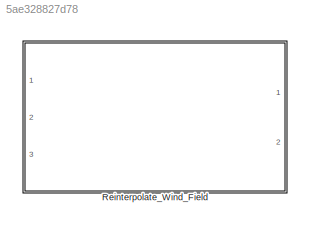
MODEL slx_5ae328827d78
KIND library
CONFIG AbsTol = auto
CONFIG EnableMultiTasking = off
CONFIG FixedStep = auto
CONFIG MaxStep = auto
CONFIG MinStep = auto
CONFIG RelTol = 1e-3
CONFIG SampleTimeConstraint = Unconstrained
CONFIG Solver = VariableStepAuto
CONFIG SolverName = VariableStepAuto
CONFIG StartTime = 0.0
CONFIG StopTime = 10.0
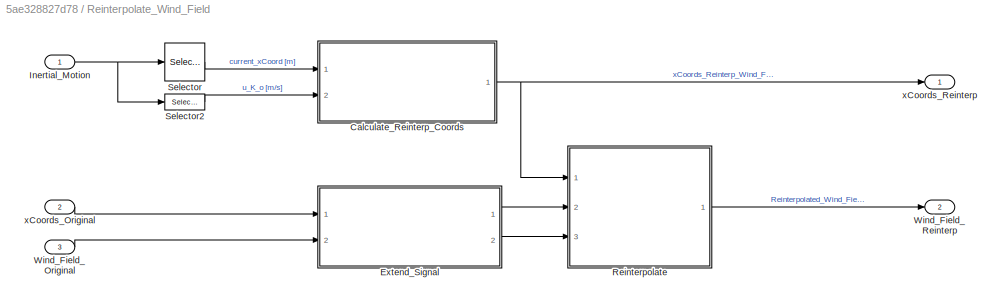
BLOCK [SubSystem] Reinterpolate_Wind_Field
  Ports = [3, 2]
  RequestExecContextInheritance = off
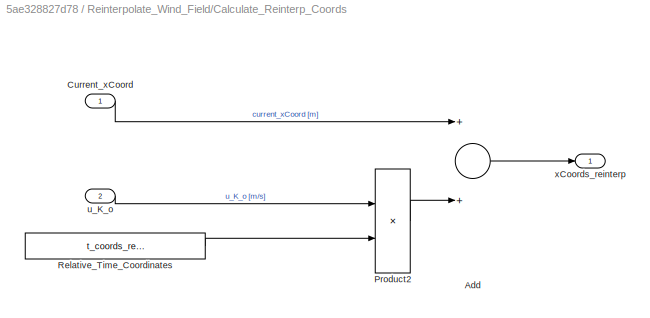
BLOCK [SubSystem] Reinterpolate_Wind_Field/Calculate_Reinterp_Coords
  Ports = [2, 1]
  RequestExecContextInheritance = off
BLOCK [Sum] Reinterpolate_Wind_Field/Calculate_Reinterp_Coords/Add
  InputSameDT = off
  OutDataTypeStr = Inherit: Inherit via internal rule
  Ports = [2, 1]
  SaturateOnIntegerOverflow = off
BLOCK [Inport] Reinterpolate_Wind_Field/Calculate_Reinterp_Coords/Current_xCoord
  IconDisplay = Port number
BLOCK [Product] Reinterpolate_Wind_Field/Calculate_Reinterp_Coords/Product2
  InputSameDT = off
  OutDataTypeStr = Inherit: Inherit via internal rule
  Ports = [2, 1]
  SaturateOnIntegerOverflow = off
BLOCK [Constant] Reinterpolate_Wind_Field/Calculate_Reinterp_Coords/Relative_Time_Coordinates
  Value = t_coords_reinterp
BLOCK [Inport] Reinterpolate_Wind_Field/Calculate_Reinterp_Coords/u_K_o
  IconDisplay = Port number
  Port = 2
BLOCK [Outport] Reinterpolate_Wind_Field/Calculate_Reinterp_Coords/xCoords_reinterp
  IconDisplay = Port number
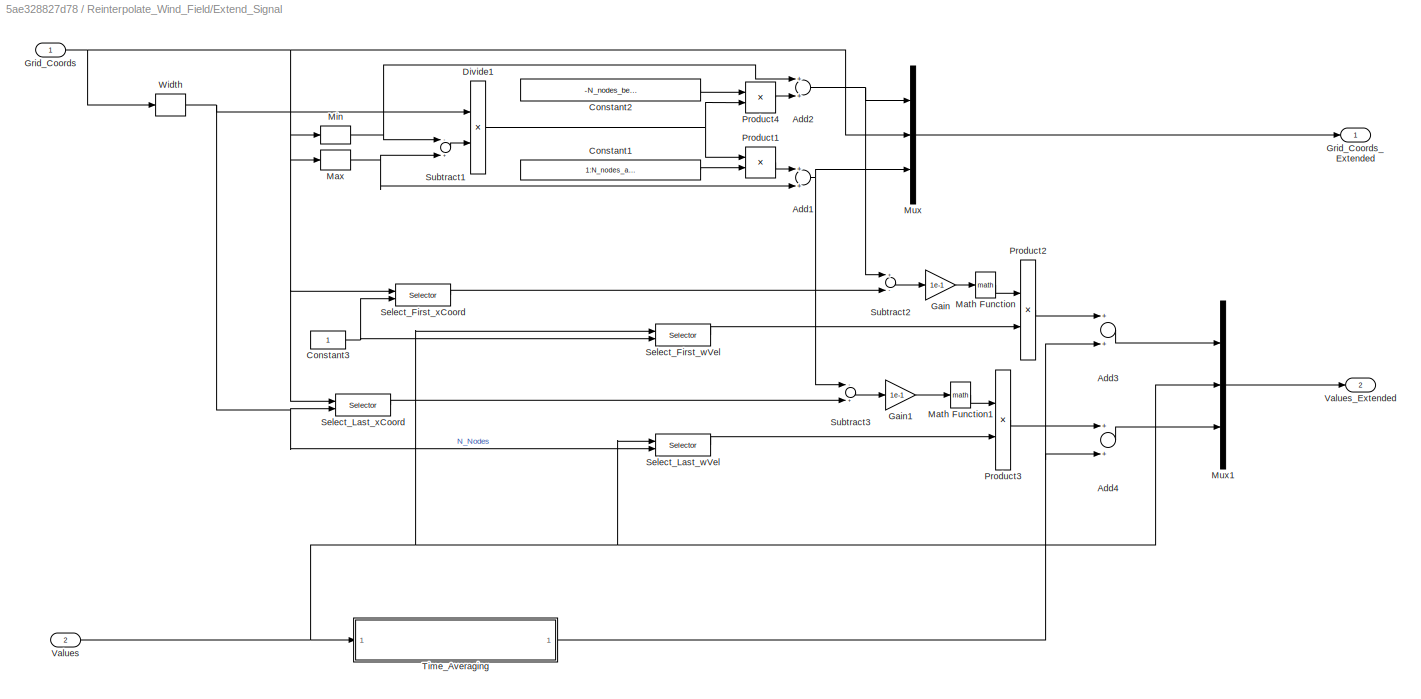
BLOCK [SubSystem] Reinterpolate_Wind_Field/Extend_Signal
  Ports = [2, 2]
  RequestExecContextInheritance = off
BLOCK [Sum] Reinterpolate_Wind_Field/Extend_Signal/Add1
  InputSameDT = off
  OutDataTypeStr = Inherit: Inherit via internal rule
  Ports = [2, 1]
  SaturateOnIntegerOverflow = off
BLOCK [Sum] Reinterpolate_Wind_Field/Extend_Signal/Add2
  InputSameDT = off
  OutDataTypeStr = Inherit: Inherit via internal rule
  Ports = [2, 1]
  SaturateOnIntegerOverflow = off
BLOCK [Sum] Reinterpolate_Wind_Field/Extend_Signal/Add3
  InputSameDT = off
  OutDataTypeStr = Inherit: Inherit via internal rule
  Ports = [2, 1]
  SaturateOnIntegerOverflow = off
BLOCK [Sum] Reinterpolate_Wind_Field/Extend_Signal/Add4
  InputSameDT = off
  OutDataTypeStr = Inherit: Inherit via internal rule
  Ports = [2, 1]
  SaturateOnIntegerOverflow = off
BLOCK [Constant] Reinterpolate_Wind_Field/Extend_Signal/Constant1
  Value = 1:N_nodes_ahead
BLOCK [Constant] Reinterpolate_Wind_Field/Extend_Signal/Constant2
  Value = -N_nodes_behind:-1
BLOCK [Constant] Reinterpolate_Wind_Field/Extend_Signal/Constant3
BLOCK [Product] Reinterpolate_Wind_Field/Extend_Signal/Divide1
  InputSameDT = off
  Inputs = /*
  OutDataTypeStr = Inherit: Inherit via internal rule
  Ports = [2, 1]
  RndMeth = Floor
  SaturateOnIntegerOverflow = off
BLOCK [Gain] Reinterpolate_Wind_Field/Extend_Signal/Gain
  Gain = 1e-1
  OutDataTypeStr = Inherit: Inherit via internal rule
  ParamDataTypeStr = Inherit: Inherit via internal rule
  SaturateOnIntegerOverflow = off
BLOCK [Gain] Reinterpolate_Wind_Field/Extend_Signal/Gain1
  Gain = 1e-1
  OutDataTypeStr = Inherit: Inherit via internal rule
  ParamDataTypeStr = Inherit: Inherit via internal rule
  SaturateOnIntegerOverflow = off
BLOCK [Inport] Reinterpolate_Wind_Field/Extend_Signal/Grid_Coords
  IconDisplay = Port number
BLOCK [Outport] Reinterpolate_Wind_Field/Extend_Signal/Grid_Coords_Extended
  IconDisplay = Port number
BLOCK [Math] Reinterpolate_Wind_Field/Extend_Signal/Math Function
  Ports = [1, 1]
BLOCK [Math] Reinterpolate_Wind_Field/Extend_Signal/Math Function1
  Ports = [1, 1]
BLOCK [MinMax] Reinterpolate_Wind_Field/Extend_Signal/Max
  Function = max
  InputSameDT = off
  Ports = [1, 1]
  SaturateOnIntegerOverflow = off
BLOCK [MinMax] Reinterpolate_Wind_Field/Extend_Signal/Min
  InputSameDT = off
  Ports = [1, 1]
  SaturateOnIntegerOverflow = off
BLOCK [Mux] Reinterpolate_Wind_Field/Extend_Signal/Mux
  DisplayOption = bar
  Inputs = 3
  Ports = [3, 1]
BLOCK [Mux] Reinterpolate_Wind_Field/Extend_Signal/Mux1
  DisplayOption = bar
  Inputs = 3
  Ports = [3, 1]
BLOCK [Product] Reinterpolate_Wind_Field/Extend_Signal/Product1
  InputSameDT = off
  OutDataTypeStr = Inherit: Inherit via internal rule
  Ports = [2, 1]
  SaturateOnIntegerOverflow = off
BLOCK [Product] Reinterpolate_Wind_Field/Extend_Signal/Product2
  InputSameDT = off
  OutDataTypeStr = Inherit: Inherit via internal rule
  Ports = [2, 1]
  SaturateOnIntegerOverflow = off
BLOCK [Product] Reinterpolate_Wind_Field/Extend_Signal/Product3
  InputSameDT = off
  OutDataTypeStr = Inherit: Inherit via internal rule
  Ports = [2, 1]
  SaturateOnIntegerOverflow = off
BLOCK [Product] Reinterpolate_Wind_Field/Extend_Signal/Product4
  InputSameDT = off
  OutDataTypeStr = Inherit: Inherit via internal rule
  Ports = [2, 1]
  SaturateOnIntegerOverflow = off
BLOCK [Selector] Reinterpolate_Wind_Field/Extend_Signal/Select_First_wVel
  IndexOptions = Index vector (port)
  Indices = 1
  OutputSizes = 1
  Ports = [2, 1]
BLOCK [Selector] Reinterpolate_Wind_Field/Extend_Signal/Select_First_xCoord
  IndexOptions = Index vector (port)
  Indices = 1
  OutputSizes = 1
  Ports = [2, 1]
BLOCK [Selector] Reinterpolate_Wind_Field/Extend_Signal/Select_Last_wVel
  IndexOptions = Index vector (port)
  Indices = 1
  OutputSizes = 1
  Ports = [2, 1]
BLOCK [Selector] Reinterpolate_Wind_Field/Extend_Signal/Select_Last_xCoord
  IndexOptions = Index vector (port)
  Indices = 1
  OutputSizes = 1
  Ports = [2, 1]
BLOCK [Sum] Reinterpolate_Wind_Field/Extend_Signal/Subtract1
  InputSameDT = off
  Inputs = -+
  OutDataTypeStr = Inherit: Inherit via internal rule
  Ports = [2, 1]
  SaturateOnIntegerOverflow = off
BLOCK [Sum] Reinterpolate_Wind_Field/Extend_Signal/Subtract2
  InputSameDT = off
  Inputs = +-
  OutDataTypeStr = Inherit: Inherit via internal rule
  Ports = [2, 1]
  SaturateOnIntegerOverflow = off
BLOCK [Sum] Reinterpolate_Wind_Field/Extend_Signal/Subtract3
  InputSameDT = off
  Inputs = -+
  OutDataTypeStr = Inherit: Inherit via internal rule
  Ports = [2, 1]
  SaturateOnIntegerOverflow = off
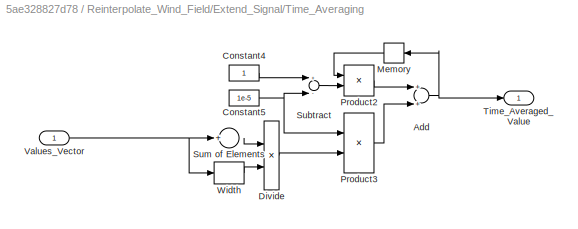
BLOCK [SubSystem] Reinterpolate_Wind_Field/Extend_Signal/Time_Averaging
  Ports = [1, 1]
  RequestExecContextInheritance = off
BLOCK [Sum] Reinterpolate_Wind_Field/Extend_Signal/Time_Averaging/Add
  InputSameDT = off
  OutDataTypeStr = Inherit: Inherit via internal rule
  Ports = [2, 1]
  SaturateOnIntegerOverflow = off
BLOCK [Constant] Reinterpolate_Wind_Field/Extend_Signal/Time_Averaging/Constant4
BLOCK [Constant] Reinterpolate_Wind_Field/Extend_Signal/Time_Averaging/Constant5
  Value = 1e-5
BLOCK [Product] Reinterpolate_Wind_Field/Extend_Signal/Time_Averaging/Divide
  InputSameDT = off
  Inputs = */
  OutDataTypeStr = Inherit: Inherit via internal rule
  Ports = [2, 1]
  RndMeth = Floor
  SaturateOnIntegerOverflow = off
BLOCK [Memory] Reinterpolate_Wind_Field/Extend_Signal/Time_Averaging/Memory
BLOCK [Product] Reinterpolate_Wind_Field/Extend_Signal/Time_Averaging/Product2
  InputSameDT = off
  OutDataTypeStr = Inherit: Inherit via internal rule
  Ports = [2, 1]
  SaturateOnIntegerOverflow = off
BLOCK [Product] Reinterpolate_Wind_Field/Extend_Signal/Time_Averaging/Product3
  InputSameDT = off
  OutDataTypeStr = Inherit: Inherit via internal rule
  Ports = [2, 1]
  SaturateOnIntegerOverflow = off
BLOCK [Sum] Reinterpolate_Wind_Field/Extend_Signal/Time_Averaging/Subtract
  InputSameDT = off
  Inputs = +-
  OutDataTypeStr = Inherit: Inherit via internal rule
  Ports = [2, 1]
  SaturateOnIntegerOverflow = off
BLOCK [Sum] Reinterpolate_Wind_Field/Extend_Signal/Time_Averaging/Sum of Elements
  InputSameDT = off
  Inputs = +
  OutDataTypeStr = Inherit: Inherit via internal rule
  Ports = [1, 1]
  SaturateOnIntegerOverflow = off
BLOCK [Outport] Reinterpolate_Wind_Field/Extend_Signal/Time_Averaging/Time_Averaged_Value
  IconDisplay = Port number
BLOCK [Inport] Reinterpolate_Wind_Field/Extend_Signal/Time_Averaging/Values_Vector
  IconDisplay = Port number
BLOCK [Width] Reinterpolate_Wind_Field/Extend_Signal/Time_Averaging/Width
BLOCK [Inport] Reinterpolate_Wind_Field/Extend_Signal/Values
  IconDisplay = Port number
  Port = 2
BLOCK [Outport] Reinterpolate_Wind_Field/Extend_Signal/Values_Extended
  IconDisplay = Port number
  Port = 2
BLOCK [Width] Reinterpolate_Wind_Field/Extend_Signal/Width
BLOCK [Inport] Reinterpolate_Wind_Field/Inertial_Motion
  IconDisplay = Port number
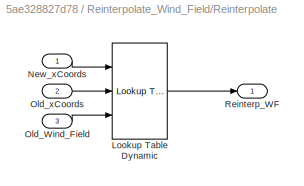
BLOCK [SubSystem] Reinterpolate_Wind_Field/Reinterpolate
  Ports = [3, 1]
  RequestExecContextInheritance = off
BLOCK [Reference] Reinterpolate_Wind_Field/Reinterpolate/Lookup Table Dynamic  REF=simulink/Lookup
Tables/Lookup
Table
Dynamic
  Ports = [3, 1]
  SourceBlock = simulink/Lookup\nTables/Lookup\nTable\nDynamic
  SourceType = Lookup Table Dynamic
BLOCK [Inport] Reinterpolate_Wind_Field/Reinterpolate/New_xCoords
  IconDisplay = Port number
BLOCK [Inport] Reinterpolate_Wind_Field/Reinterpolate/Old_Wind_Field
  IconDisplay = Port number
  Port = 3
BLOCK [Inport] Reinterpolate_Wind_Field/Reinterpolate/Old_xCoords
  IconDisplay = Port number
  Port = 2
BLOCK [Outport] Reinterpolate_Wind_Field/Reinterpolate/Reinterp_WF
  IconDisplay = Port number
BLOCK [Selector] Reinterpolate_Wind_Field/Selector
  IndexOptions = Index vector (dialog)
  Indices = 1
  OutputSizes = 1
  Ports = [1, 1]
BLOCK [Selector] Reinterpolate_Wind_Field/Selector2
  IndexOptions = Index vector (dialog)
  Indices = 7
  OutputSizes = 1
  Ports = [1, 1]
BLOCK [Inport] Reinterpolate_Wind_Field/Wind_Field_Original
  IconDisplay = Port number
  Port = 3
BLOCK [Outport] Reinterpolate_Wind_Field/Wind_Field_Reinterp
  IconDisplay = Port number
  Port = 2
BLOCK [Inport] Reinterpolate_Wind_Field/xCoords_Original
  IconDisplay = Port number
  Port = 2
BLOCK [Outport] Reinterpolate_Wind_Field/xCoords_Reinterp
  IconDisplay = Port number
LINE Reinterpolate_Wind_Field/Calculate_Reinterp_Coords/Add:1 -> Reinterpolate_Wind_Field/Calculate_Reinterp_Coords/xCoords_reinterp:1
LINE Reinterpolate_Wind_Field/Calculate_Reinterp_Coords/Current_xCoord:1 -> Reinterpolate_Wind_Field/Calculate_Reinterp_Coords/Add:1
LINE Reinterpolate_Wind_Field/Calculate_Reinterp_Coords/Product2:1 -> Reinterpolate_Wind_Field/Calculate_Reinterp_Coords/Add:2
LINE Reinterpolate_Wind_Field/Calculate_Reinterp_Coords/Relative_Time_Coordinates:1 -> Reinterpolate_Wind_Field/Calculate_Reinterp_Coords/Product2:2
LINE Reinterpolate_Wind_Field/Calculate_Reinterp_Coords/u_K_o:1 -> Reinterpolate_Wind_Field/Calculate_Reinterp_Coords/Product2:1
NET Reinterpolate_Wind_Field/Calculate_Reinterp_Coords:1 -> Reinterpolate_Wind_Field/Reinterpolate:1, Reinterpolate_Wind_Field/xCoords_Reinterp:1
NET Reinterpolate_Wind_Field/Extend_Signal/Add1:1 -> Reinterpolate_Wind_Field/Extend_Signal/Mux:3, Reinterpolate_Wind_Field/Extend_Signal/Subtract3:1
NET Reinterpolate_Wind_Field/Extend_Signal/Add2:1 -> Reinterpolate_Wind_Field/Extend_Signal/Mux:1, Reinterpolate_Wind_Field/Extend_Signal/Subtract2:1
LINE Reinterpolate_Wind_Field/Extend_Signal/Add3:1 -> Reinterpolate_Wind_Field/Extend_Signal/Mux1:1
LINE Reinterpolate_Wind_Field/Extend_Signal/Add4:1 -> Reinterpolate_Wind_Field/Extend_Signal/Mux1:3
LINE Reinterpolate_Wind_Field/Extend_Signal/Constant1:1 -> Reinterpolate_Wind_Field/Extend_Signal/Product1:2
LINE Reinterpolate_Wind_Field/Extend_Signal/Constant2:1 -> Reinterpolate_Wind_Field/Extend_Signal/Product4:1
NET Reinterpolate_Wind_Field/Extend_Signal/Constant3:1 -> Reinterpolate_Wind_Field/Extend_Signal/Select_First_wVel:2, Reinterpolate_Wind_Field/Extend_Signal/Select_First_xCoord:2
NET Reinterpolate_Wind_Field/Extend_Signal/Divide1:1 -> Reinterpolate_Wind_Field/Extend_Signal/Product1:1, Reinterpolate_Wind_Field/Extend_Signal/Product4:2
LINE Reinterpolate_Wind_Field/Extend_Signal/Gain1:1 -> Reinterpolate_Wind_Field/Extend_Signal/Math Function1:1
LINE Reinterpolate_Wind_Field/Extend_Signal/Gain:1 -> Reinterpolate_Wind_Field/Extend_Signal/Math Function:1
NET Reinterpolate_Wind_Field/Extend_Signal/Grid_Coords:1 -> Reinterpolate_Wind_Field/Extend_Signal/Max:1, Reinterpolate_Wind_Field/Extend_Signal/Min:1, Reinterpolate_Wind_Field/Extend_Signal/Mux:2, Reinterpolate_Wind_Field/Extend_Signal/Select_First_xCoord:1, Reinterpolate_Wind_Field/Extend_Signal/Select_Last_xCoord:1, Reinterpolate_Wind_Field/Extend_Signal/Width:1
LINE Reinterpolate_Wind_Field/Extend_Signal/Math Function1:1 -> Reinterpolate_Wind_Field/Extend_Signal/Product3:1
LINE Reinterpolate_Wind_Field/Extend_Signal/Math Function:1 -> Reinterpolate_Wind_Field/Extend_Signal/Product2:1
NET Reinterpolate_Wind_Field/Extend_Signal/Max:1 -> Reinterpolate_Wind_Field/Extend_Signal/Add1:2, Reinterpolate_Wind_Field/Extend_Signal/Subtract1:2
NET Reinterpolate_Wind_Field/Extend_Signal/Min:1 -> Reinterpolate_Wind_Field/Extend_Signal/Add2:1, Reinterpolate_Wind_Field/Extend_Signal/Subtract1:1
LINE Reinterpolate_Wind_Field/Extend_Signal/Mux1:1 -> Reinterpolate_Wind_Field/Extend_Signal/Values_Extended:1
LINE Reinterpolate_Wind_Field/Extend_Signal/Mux:1 -> Reinterpolate_Wind_Field/Extend_Signal/Grid_Coords_Extended:1
LINE Reinterpolate_Wind_Field/Extend_Signal/Product1:1 -> Reinterpolate_Wind_Field/Extend_Signal/Add1:1
LINE Reinterpolate_Wind_Field/Extend_Signal/Product2:1 -> Reinterpolate_Wind_Field/Extend_Signal/Add3:1
LINE Reinterpolate_Wind_Field/Extend_Signal/Product3:1 -> Reinterpolate_Wind_Field/Extend_Signal/Add4:1
LINE Reinterpolate_Wind_Field/Extend_Signal/Product4:1 -> Reinterpolate_Wind_Field/Extend_Signal/Add2:2
LINE Reinterpolate_Wind_Field/Extend_Signal/Select_First_wVel:1 -> Reinterpolate_Wind_Field/Extend_Signal/Product2:2
LINE Reinterpolate_Wind_Field/Extend_Signal/Select_First_xCoord:1 -> Reinterpolate_Wind_Field/Extend_Signal/Subtract2:2
LINE Reinterpolate_Wind_Field/Extend_Signal/Select_Last_wVel:1 -> Reinterpolate_Wind_Field/Extend_Signal/Product3:2
LINE Reinterpolate_Wind_Field/Extend_Signal/Select_Last_xCoord:1 -> Reinterpolate_Wind_Field/Extend_Signal/Subtract3:2
LINE Reinterpolate_Wind_Field/Extend_Signal/Subtract1:1 -> Reinterpolate_Wind_Field/Extend_Signal/Divide1:2
LINE Reinterpolate_Wind_Field/Extend_Signal/Subtract2:1 -> Reinterpolate_Wind_Field/Extend_Signal/Gain:1
LINE Reinterpolate_Wind_Field/Extend_Signal/Subtract3:1 -> Reinterpolate_Wind_Field/Extend_Signal/Gain1:1
NET Reinterpolate_Wind_Field/Extend_Signal/Time_Averaging/Add:1 -> Reinterpolate_Wind_Field/Extend_Signal/Time_Averaging/Memory:1, Reinterpolate_Wind_Field/Extend_Signal/Time_Averaging/Time_Averaged_Value:1
LINE Reinterpolate_Wind_Field/Extend_Signal/Time_Averaging/Constant4:1 -> Reinterpolate_Wind_Field/Extend_Signal/Time_Averaging/Subtract:1
NET Reinterpolate_Wind_Field/Extend_Signal/Time_Averaging/Constant5:1 -> Reinterpolate_Wind_Field/Extend_Signal/Time_Averaging/Product3:1, Reinterpolate_Wind_Field/Extend_Signal/Time_Averaging/Subtract:2
LINE Reinterpolate_Wind_Field/Extend_Signal/Time_Averaging/Divide:1 -> Reinterpolate_Wind_Field/Extend_Signal/Time_Averaging/Product3:2
LINE Reinterpolate_Wind_Field/Extend_Signal/Time_Averaging/Memory:1 -> Reinterpolate_Wind_Field/Extend_Signal/Time_Averaging/Product2:1
LINE Reinterpolate_Wind_Field/Extend_Signal/Time_Averaging/Product2:1 -> Reinterpolate_Wind_Field/Extend_Signal/Time_Averaging/Add:1
LINE Reinterpolate_Wind_Field/Extend_Signal/Time_Averaging/Product3:1 -> Reinterpolate_Wind_Field/Extend_Signal/Time_Averaging/Add:2
LINE Reinterpolate_Wind_Field/Extend_Signal/Time_Averaging/Subtract:1 -> Reinterpolate_Wind_Field/Extend_Signal/Time_Averaging/Product2:2
LINE Reinterpolate_Wind_Field/Extend_Signal/Time_Averaging/Sum of Elements:1 -> Reinterpolate_Wind_Field/Extend_Signal/Time_Averaging/Divide:1
NET Reinterpolate_Wind_Field/Extend_Signal/Time_Averaging/Values_Vector:1 -> Reinterpolate_Wind_Field/Extend_Signal/Time_Averaging/Sum of Elements:1, Reinterpolate_Wind_Field/Extend_Signal/Time_Averaging/Width:1
LINE Reinterpolate_Wind_Field/Extend_Signal/Time_Averaging/Width:1 -> Reinterpolate_Wind_Field/Extend_Signal/Time_Averaging/Divide:2
NET Reinterpolate_Wind_Field/Extend_Signal/Time_Averaging:1 -> Reinterpolate_Wind_Field/Extend_Signal/Add3:2, Reinterpolate_Wind_Field/Extend_Signal/Add4:2
NET Reinterpolate_Wind_Field/Extend_Signal/Values:1 -> Reinterpolate_Wind_Field/Extend_Signal/Mux1:2, Reinterpolate_Wind_Field/Extend_Signal/Select_First_wVel:1, Reinterpolate_Wind_Field/Extend_Signal/Select_Last_wVel:1, Reinterpolate_Wind_Field/Extend_Signal/Time_Averaging:1
NET Reinterpolate_Wind_Field/Extend_Signal/Width:1 -> Reinterpolate_Wind_Field/Extend_Signal/Divide1:1, Reinterpolate_Wind_Field/Extend_Signal/Select_Last_wVel:2, Reinterpolate_Wind_Field/Extend_Signal/Select_Last_xCoord:2
LINE Reinterpolate_Wind_Field/Extend_Signal:1 -> Reinterpolate_Wind_Field/Reinterpolate:2
LINE Reinterpolate_Wind_Field/Extend_Signal:2 -> Reinterpolate_Wind_Field/Reinterpolate:3
NET Reinterpolate_Wind_Field/Inertial_Motion:1 -> Reinterpolate_Wind_Field/Selector2:1, Reinterpolate_Wind_Field/Selector:1
LINE Reinterpolate_Wind_Field/Reinterpolate/Lookup Table Dynamic:1 -> Reinterpolate_Wind_Field/Reinterpolate/Reinterp_WF:1
LINE Reinterpolate_Wind_Field/Reinterpolate/New_xCoords:1 -> Reinterpolate_Wind_Field/Reinterpolate/Lookup Table Dynamic:1
LINE Reinterpolate_Wind_Field/Reinterpolate/Old_Wind_Field:1 -> Reinterpolate_Wind_Field/Reinterpolate/Lookup Table Dynamic:3
LINE Reinterpolate_Wind_Field/Reinterpolate/Old_xCoords:1 -> Reinterpolate_Wind_Field/Reinterpolate/Lookup Table Dynamic:2
LINE Reinterpolate_Wind_Field/Reinterpolate:1 -> Reinterpolate_Wind_Field/Wind_Field_Reinterp:1
LINE Reinterpolate_Wind_Field/Selector2:1 -> Reinterpolate_Wind_Field/Calculate_Reinterp_Coords:2
LINE Reinterpolate_Wind_Field/Selector:1 -> Reinterpolate_Wind_Field/Calculate_Reinterp_Coords:1
LINE Reinterpolate_Wind_Field/Wind_Field_Original:1 -> Reinterpolate_Wind_Field/Extend_Signal:2
LINE Reinterpolate_Wind_Field/xCoords_Original:1 -> Reinterpolate_Wind_Field/Extend_Signal:1
note: NET lines group one-source signal fan-out (src -> all destinations, sorted); 1:1 wires keep LINE
